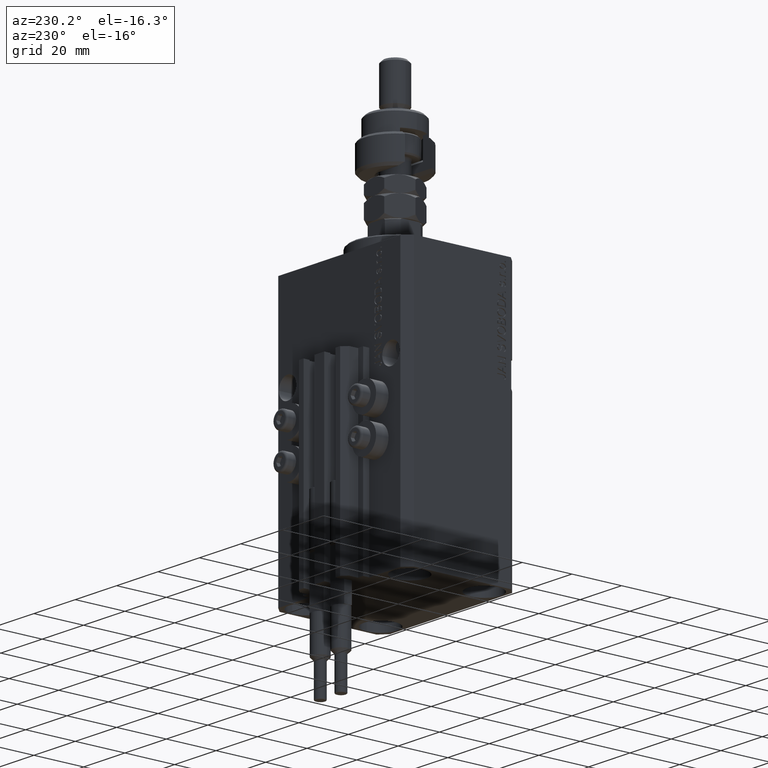
[diagram: clean part render]
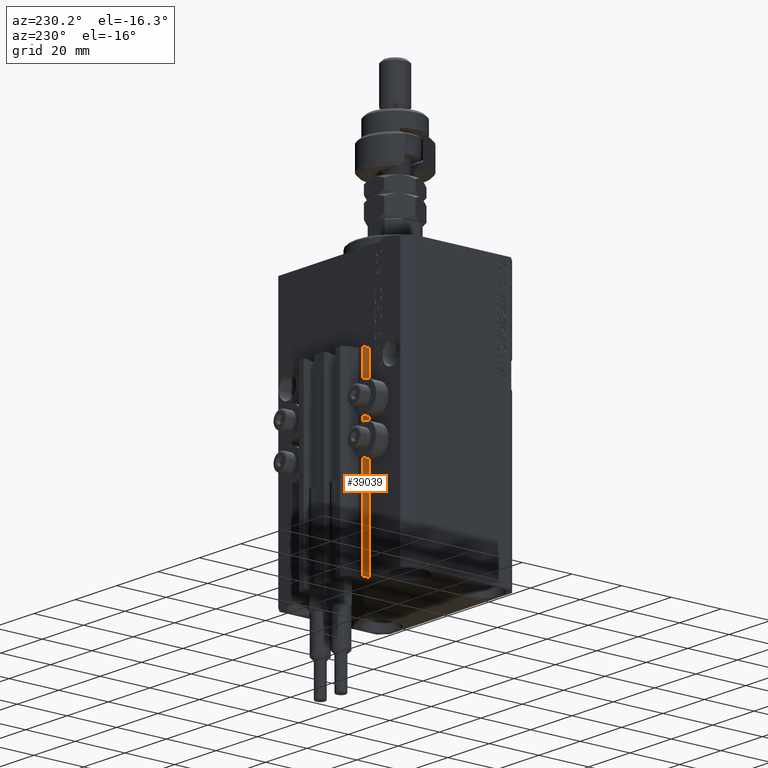
[diagram: same view with one face highlighted and labeled with its STEP entity id]
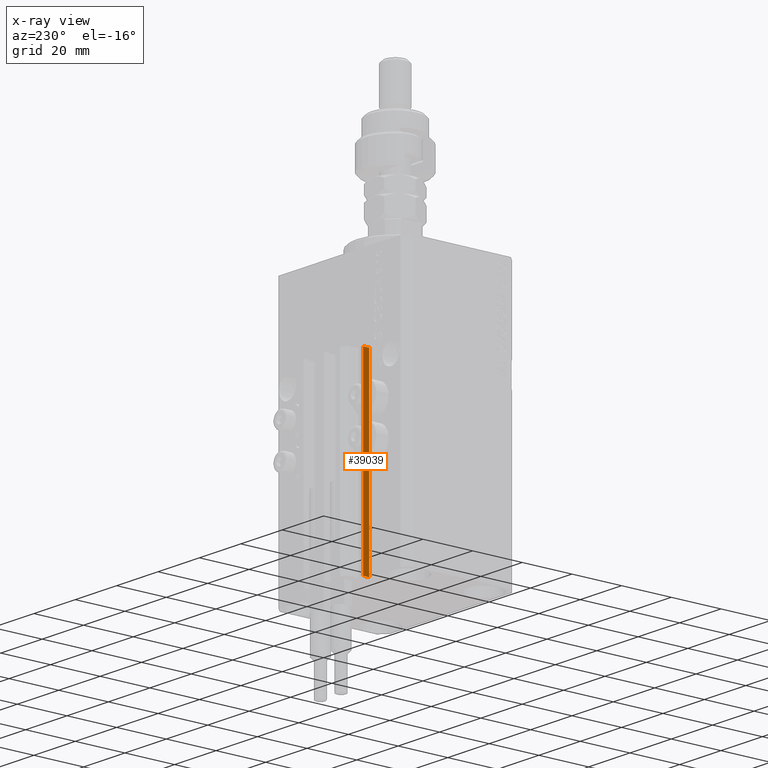
[diagram: x-ray of the same camera — body ghosted, the highlighted face saturated]
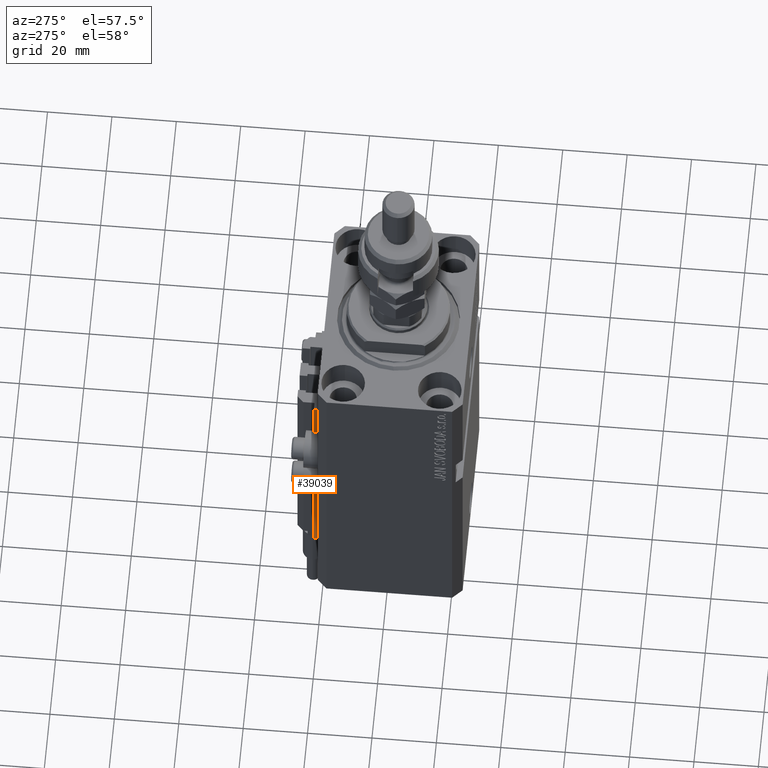
[diagram: same view with one face highlighted and labeled with its STEP entity id]
A machine part, auxiliary view. The second image highlights one B-rep face of the part: STEP entity #39039.
The next image is the same camera in x-ray: the body ghosted, the highlighted face saturated — about 0% of this face is hidden behind the body in this view.
A second angle (auxiliary view) of the same face is appended — the face is thin or edge-on in the first view.
In plain terms, the highlighted planar face has unit normal (-1, 0, 0).
Its self-contained STEP definition (entity closure, byte-faithful):
#428 = AXIS2_PLACEMENT_3D ( 'NONE', #48937, #13722, #29405 ) ;
#559 = VECTOR ( 'NONE', #11325, 1000.000000000000000 ) ;
#1232 = VERTEX_POINT ( 'NONE', #17175 ) ;
#2542 = CARTESIAN_POINT ( 'NONE',  ( -14.50000000000000000, 22.49999999999949907, -33.00000000000000000 ) ) ;
#2747 = VERTEX_POINT ( 'NONE', #14222 ) ;
#3751 = EDGE_CURVE ( 'NONE', #1232, #2747, #27816, .T. ) ;
#8433 = ORIENTED_EDGE ( 'NONE', *, *, #22871, .F. ) ;
#8498 = CARTESIAN_POINT ( 'NONE',  ( -14.50000000000000000, 24.99999999999949196, -107.0000000000000000 ) ) ;
#8744 = DIRECTION ( 'NONE',  ( 0.000000000000000000, -1.000000000000000000, 0.000000000000000000 ) ) ;
#9596 = FACE_OUTER_BOUND ( 'NONE', #22601, .T. ) ;
#9766 = VERTEX_POINT ( 'NONE', #47021 ) ;
#11325 = DIRECTION ( 'NONE',  ( 0.000000000000000000, -1.000000000000000000, 0.000000000000000000 ) ) ;
#13722 = DIRECTION ( 'NONE',  ( -1.000000000000000000, 0.000000000000000000, 0.000000000000000000 ) ) ;
#14222 = CARTESIAN_POINT ( 'NONE',  ( -14.50000000000000000, 22.49999999999949907, -107.0000000000000000 ) ) ;
#15328 = VECTOR ( 'NONE', #8744, 1000.000000000000000 ) ;
#15745 = LINE ( 'NONE', #30417, #30898 ) ;
#17175 = CARTESIAN_POINT ( 'NONE',  ( -14.50000000000000000, 24.99999999999949196, -107.0000000000000000 ) ) ;
#19710 = EDGE_CURVE ( 'NONE', #9766, #28550, #23146, .T. ) ;
#22601 = EDGE_LOOP ( 'NONE', ( #27418, #8433, #34947, #23128 ) ) ;
#22871 = EDGE_CURVE ( 'NONE', #1232, #9766, #28290, .T. ) ;
#23128 = ORIENTED_EDGE ( 'NONE', *, *, #38193, .T. ) ;
#23146 = LINE ( 'NONE', #42162, #559 ) ;
#27418 = ORIENTED_EDGE ( 'NONE', *, *, #19710, .F. ) ;
#27816 = LINE ( 'NONE', #8498, #15328 ) ;
#28290 = LINE ( 'NONE', #40114, #30246 ) ;
#28550 = VERTEX_POINT ( 'NONE', #2542 ) ;
#29405 = DIRECTION ( 'NONE',  ( 0.000000000000000000, 0.000000000000000000, 1.000000000000000000 ) ) ;
#30246 = VECTOR ( 'NONE', #48064, 1000.000000000000000 ) ;
#30417 = CARTESIAN_POINT ( 'NONE',  ( -14.50000000000000000, 22.49999999999949907, -107.0000000000000000 ) ) ;
#30898 = VECTOR ( 'NONE', #31444, 1000.000000000000000 ) ;
#31444 = DIRECTION ( 'NONE',  ( 0.000000000000000000, 0.000000000000000000, 1.000000000000000000 ) ) ;
#33252 = PLANE ( 'NONE',  #428 ) ;
#34947 = ORIENTED_EDGE ( 'NONE', *, *, #3751, .T. ) ;
#38193 = EDGE_CURVE ( 'NONE', #2747, #28550, #15745, .T. ) ;
#39039 = ADVANCED_FACE ( 'NONE', ( #9596 ), #33252, .T. ) ;
#40114 = CARTESIAN_POINT ( 'NONE',  ( -14.50000000000000000, 24.99999999999949196, -107.0000000000000000 ) ) ;
#42162 = CARTESIAN_POINT ( 'NONE',  ( -14.50000000000000000, 24.99999999999949196, -33.00000000000000000 ) ) ;
#47021 = CARTESIAN_POINT ( 'NONE',  ( -14.50000000000000000, 24.99999999999949196, -33.00000000000000000 ) ) ;
#48064 = DIRECTION ( 'NONE',  ( 0.000000000000000000, 0.000000000000000000, 1.000000000000000000 ) ) ;
#48937 = CARTESIAN_POINT ( 'NONE',  ( -14.50000000000000000, 24.99999999999949196, -107.0000000000000000 ) ) ;